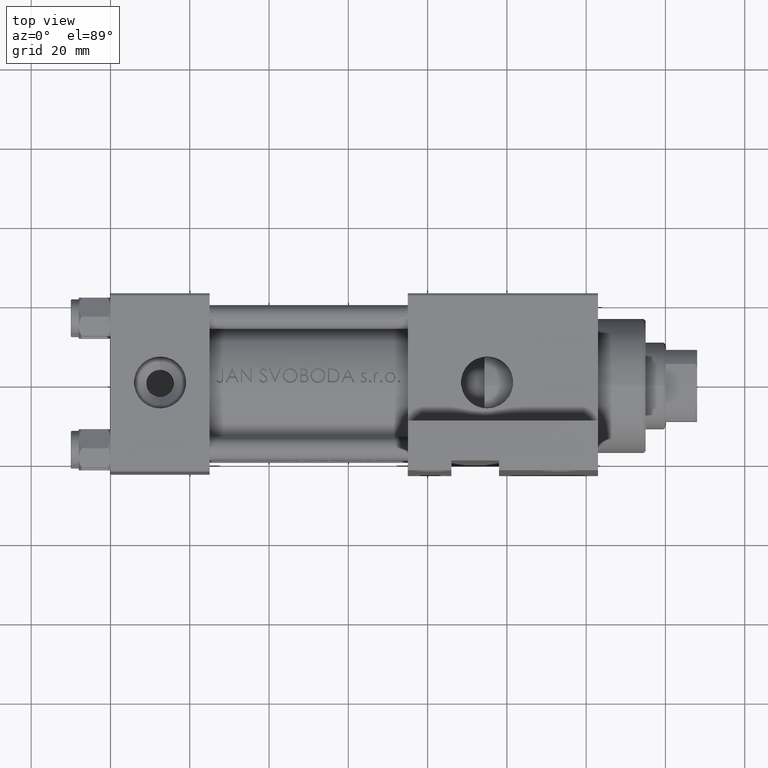
[diagram: clean part render]
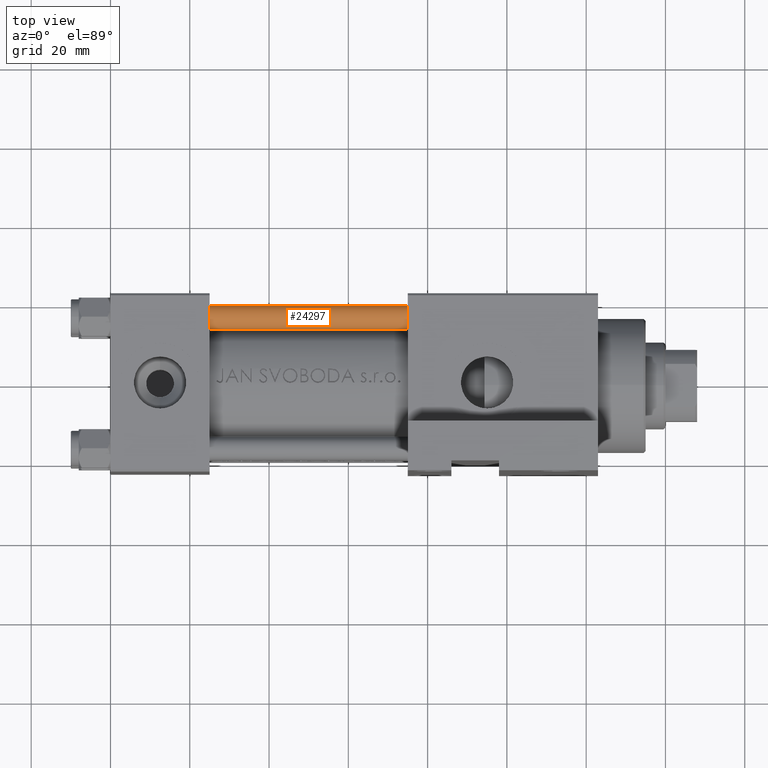
[diagram: same view with one face highlighted and labeled with its STEP entity id]
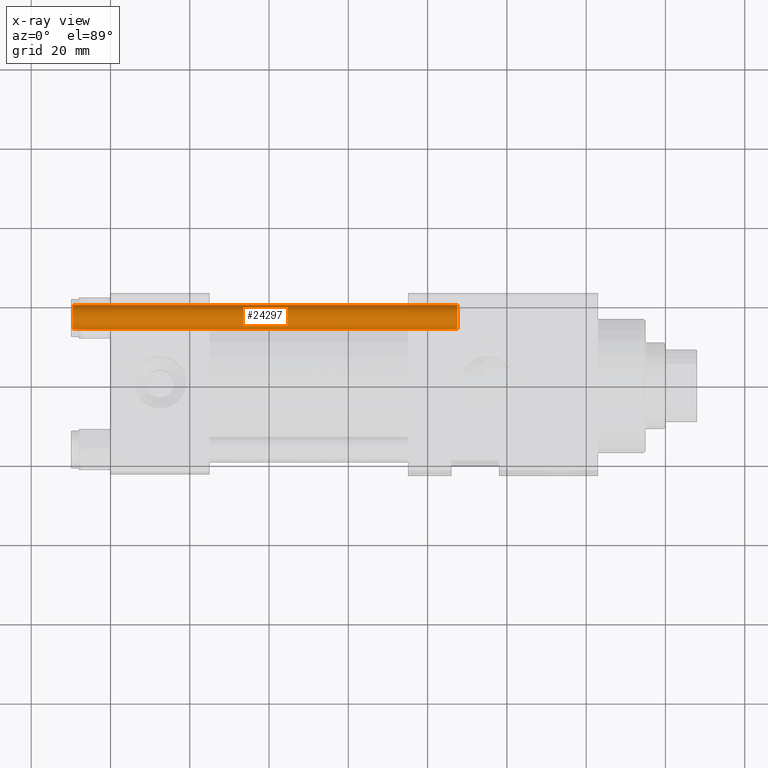
[diagram: x-ray of the same camera — body ghosted, the highlighted face saturated]
A machine part, top view. The second image highlights one B-rep face of the part: STEP entity #24297.
The next image is the same camera in x-ray: the body ghosted, the highlighted face saturated — about 0% of this face is hidden behind the body in this view.
In plain terms, the highlighted cylindrical surface (edge-blend (fillet) strip) has radius 3 mm, axis along (1, -0, 0).
Its self-contained STEP definition (entity closure, byte-faithful):
#505 = AXIS2_PLACEMENT_3D ( 'NONE', #29599, #40385, #1499 ) ;
#1499 = DIRECTION ( 'NONE',  ( -1.000000000000000000, 0.000000000000000000, 0.000000000000000000 ) ) ;
#2295 = CARTESIAN_POINT ( 'NONE',  ( 3.000000000000000444, 3.673940397442060361E-16, 97.50000000000001421 ) ) ;
#2886 = FACE_OUTER_BOUND ( 'NONE', #15096, .T. ) ;
#3087 = ORIENTED_EDGE ( 'NONE', *, *, #47949, .T. ) ;
#3186 = LINE ( 'NONE', #44638, #35392 ) ;
#8459 = DIRECTION ( 'NONE',  ( -0.000000000000000000, -0.000000000000000000, 1.000000000000000000 ) ) ;
#12200 = ORIENTED_EDGE ( 'NONE', *, *, #14435, .T. ) ;
#12396 = CARTESIAN_POINT ( 'NONE',  ( 3.000000000000000444, 3.673940397442060361E-16, 0.5000000000000281997 ) ) ;
#12874 = CARTESIAN_POINT ( 'NONE',  ( -3.000000000000000444, 0.000000000000000000, 0.5000000000000281997 ) ) ;
#14435 = EDGE_CURVE ( 'NONE', #18389, #19921, #3186, .T. ) ;
#15096 = EDGE_LOOP ( 'NONE', ( #23011, #3087, #12200, #15978 ) ) ;
#15679 = VECTOR ( 'NONE', #31770, 1000.000000000000000 ) ;
#15978 = ORIENTED_EDGE ( 'NONE', *, *, #44968, .T. ) ;
#18389 = VERTEX_POINT ( 'NONE', #42844 ) ;
#19880 = VERTEX_POINT ( 'NONE', #12396 ) ;
#19921 = VERTEX_POINT ( 'NONE', #12874 ) ;
#19952 = DIRECTION ( 'NONE',  ( 1.000000000000000000, 0.000000000000000000, 0.000000000000000000 ) ) ;
#20169 = VERTEX_POINT ( 'NONE', #2295 ) ;
#23011 = ORIENTED_EDGE ( 'NONE', *, *, #23922, .F. ) ;
#23922 = EDGE_CURVE ( 'NONE', #20169, #19880, #39509, .T. ) ;
#24297 = ADVANCED_FACE ( 'NONE', ( #2886 ), #48332, .T. ) ;
#24348 = AXIS2_PLACEMENT_3D ( 'NONE', #35186, #8459, #19952 ) ;
#29599 = CARTESIAN_POINT ( 'NONE',  ( 0.000000000000000000, 0.000000000000000000, 98.00000000000000000 ) ) ;
#30163 = DIRECTION ( 'NONE',  ( -0.000000000000000000, -0.000000000000000000, -1.000000000000000000 ) ) ;
#31770 = DIRECTION ( 'NONE',  ( -0.000000000000000000, -0.000000000000000000, -1.000000000000000000 ) ) ;
#33138 = CIRCLE ( 'NONE', #24348, 3.000000000000000444 ) ;
#35186 = CARTESIAN_POINT ( 'NONE',  ( 0.000000000000000000, 0.000000000000000000, 0.5000000000000281997 ) ) ;
#35392 = VECTOR ( 'NONE', #30163, 1000.000000000000000 ) ;
#36440 = AXIS2_PLACEMENT_3D ( 'NONE', #40884, #37636, #41392 ) ;
#37636 = DIRECTION ( 'NONE',  ( 0.000000000000000000, 0.000000000000000000, -1.000000000000000000 ) ) ;
#38047 = CIRCLE ( 'NONE', #36440, 3.000000000000000444 ) ;
#39509 = LINE ( 'NONE', #46739, #15679 ) ;
#40385 = DIRECTION ( 'NONE',  ( -0.000000000000000000, -0.000000000000000000, -1.000000000000000000 ) ) ;
#40884 = CARTESIAN_POINT ( 'NONE',  ( 0.000000000000000000, 0.000000000000000000, 97.50000000000001421 ) ) ;
#41392 = DIRECTION ( 'NONE',  ( 1.000000000000000000, 0.000000000000000000, 0.000000000000000000 ) ) ;
#42844 = CARTESIAN_POINT ( 'NONE',  ( -3.000000000000000444, 0.000000000000000000, 97.50000000000001421 ) ) ;
#44638 = CARTESIAN_POINT ( 'NONE',  ( -3.000000000000000444, 0.000000000000000000, 98.00000000000000000 ) ) ;
#44968 = EDGE_CURVE ( 'NONE', #19921, #19880, #33138, .T. ) ;
#46739 = CARTESIAN_POINT ( 'NONE',  ( 3.000000000000000444, 3.673940397442060361E-16, 98.00000000000000000 ) ) ;
#47949 = EDGE_CURVE ( 'NONE', #20169, #18389, #38047, .T. ) ;
#48332 = CYLINDRICAL_SURFACE ( 'NONE', #505, 3.000000000000000444 ) ;